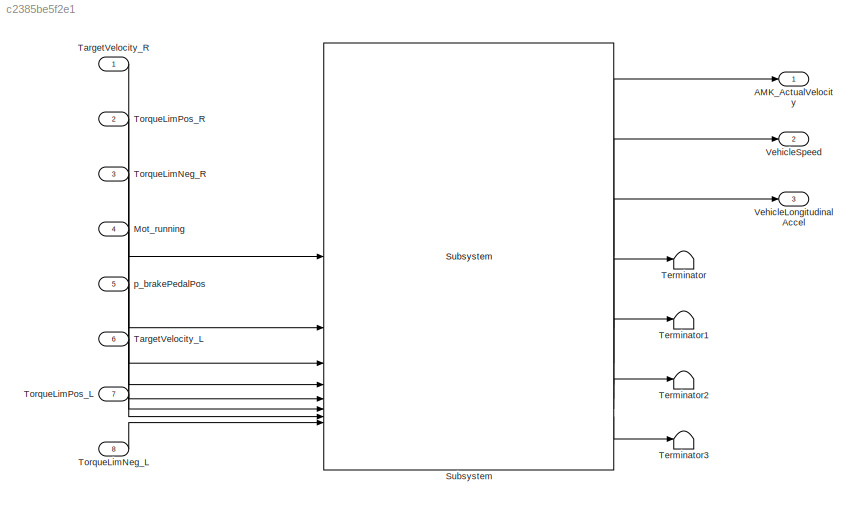
MODEL slx_c2385be5f2e1
KIND model
CONFIG AbsTol = auto
CONFIG EnableMultiTasking = off
CONFIG FixedStep = 1e-2
CONFIG MaxStep = auto
CONFIG MinStep = auto
CONFIG RelTol = 1e-3
CONFIG SampleTimeConstraint = Unconstrained
CONFIG SolverName = FixedStepAuto
CONFIG StartTime = 0.0
CONFIG StopTime = 40
BLOCK [Outport] AMK_ActualVelocity
BLOCK [Inport] Mot_running
  Port = 4
BLOCK [Reference] Subsystem  REF=AMK_model_lib/AMK_PLANT/Subsystem
  SourceBlock = AMK_model_lib/AMK_PLANT/Subsystem
  SourceType = SubSystem
BLOCK [Inport] TargetVelocity_L
  Port = 6
BLOCK [Inport] TargetVelocity_R
BLOCK [Terminator] Terminator
BLOCK [Terminator] Terminator1
BLOCK [Terminator] Terminator2
BLOCK [Terminator] Terminator3
BLOCK [Inport] TorqueLimNeg_L
  Port = 8
BLOCK [Inport] TorqueLimNeg_R
  Port = 3
BLOCK [Inport] TorqueLimPos_L
  Port = 7
BLOCK [Inport] TorqueLimPos_R
  Port = 2
BLOCK [Outport] VehicleLongitudinalAccel
  Port = 3
BLOCK [Outport] VehicleSpeed
  Port = 2
BLOCK [Inport] p_brakePedalPos
  OutDataTypeStr = single
  Port = 5
LINE Mot_running:1 -> Subsystem:4
LINE Subsystem:1 -> AMK_ActualVelocity:1
LINE Subsystem:2 -> VehicleSpeed:1
LINE Subsystem:3 -> VehicleLongitudinalAccel:1
LINE Subsystem:4 -> Terminator:1
LINE Subsystem:5 -> Terminator1:1
LINE Subsystem:6 -> Terminator2:1
LINE Subsystem:7 -> Terminator3:1
LINE TargetVelocity_L:1 -> Subsystem:6
LINE TargetVelocity_R:1 -> Subsystem:1
LINE TorqueLimNeg_L:1 -> Subsystem:8
LINE TorqueLimNeg_R:1 -> Subsystem:3
LINE TorqueLimPos_L:1 -> Subsystem:7
LINE TorqueLimPos_R:1 -> Subsystem:2
LINE p_brakePedalPos:1 -> Subsystem:5
